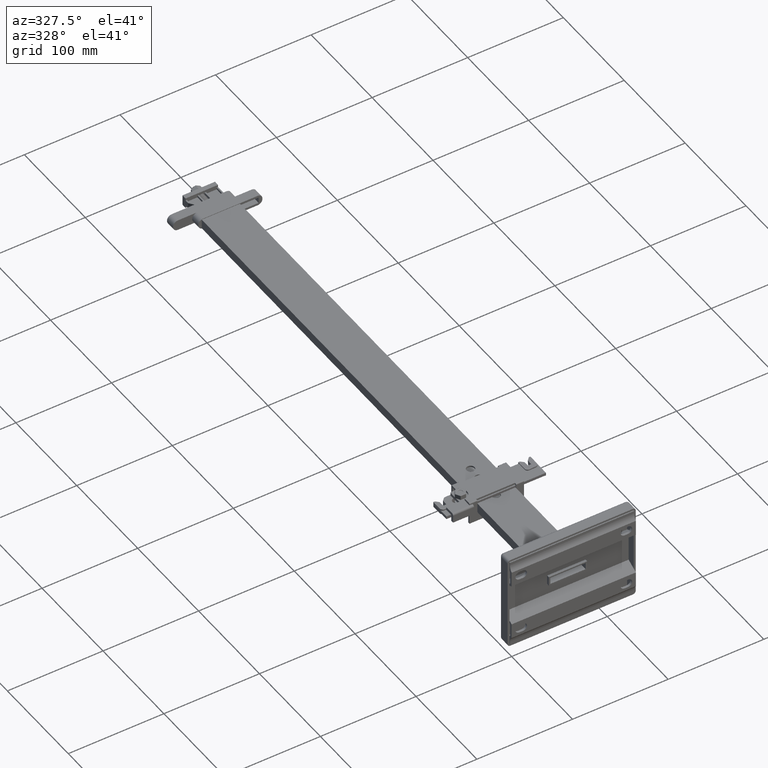
[diagram: clean part render]
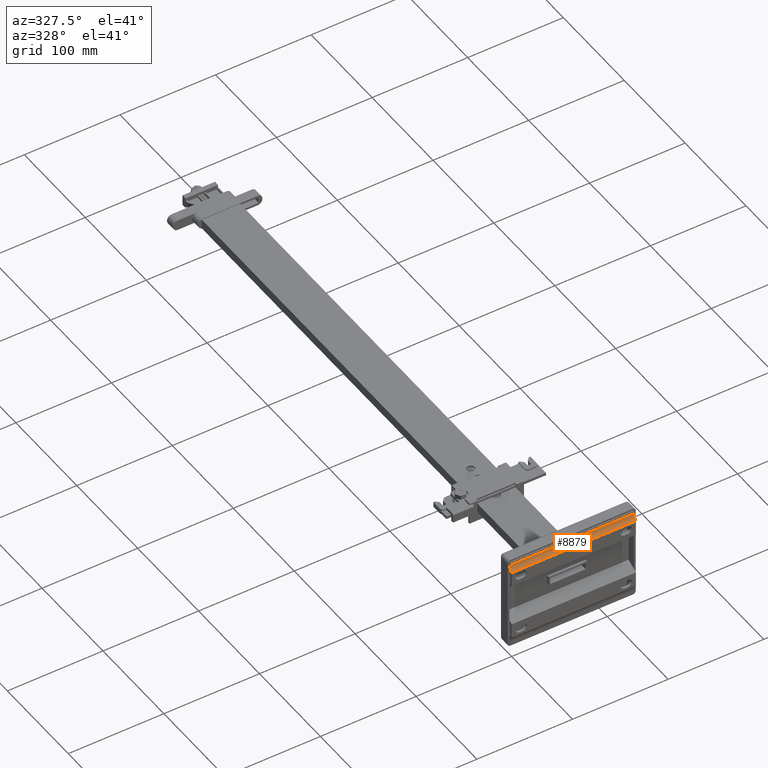
[diagram: same view with one face highlighted and labeled with its STEP entity id]
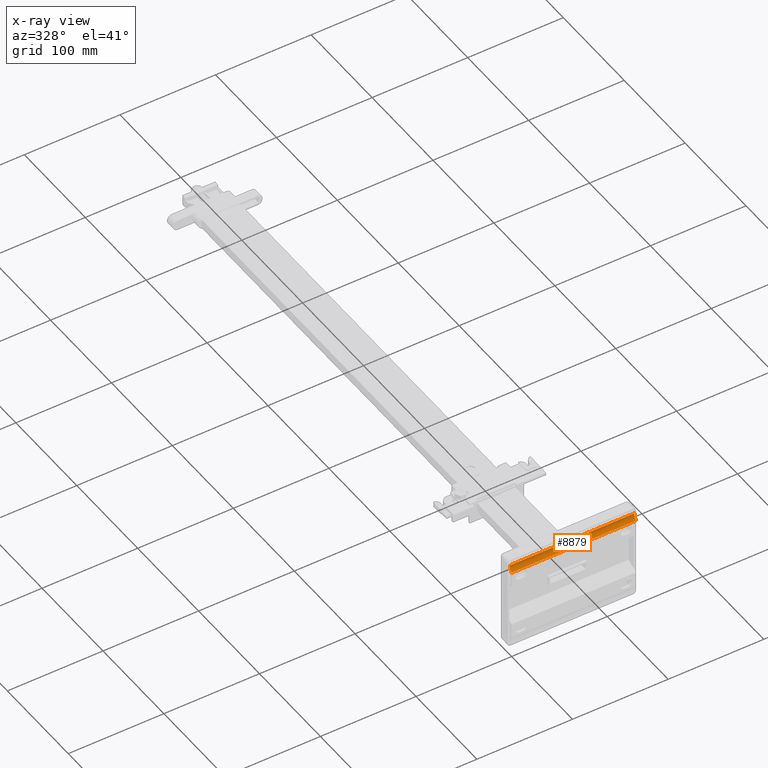
[diagram: x-ray of the same camera — body ghosted, the highlighted face saturated]
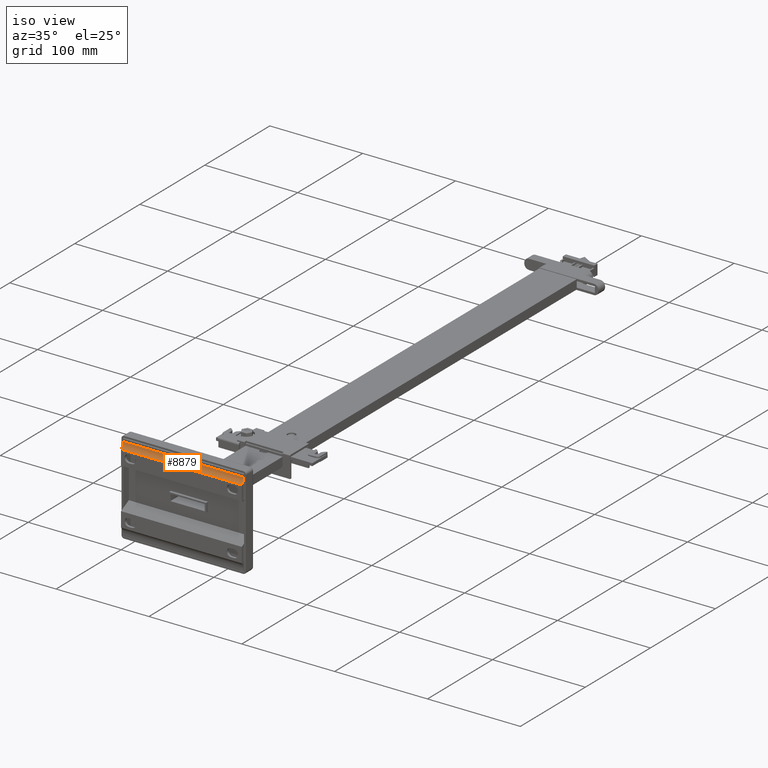
[diagram: same view with one face highlighted and labeled with its STEP entity id]
A machine part, auxiliary view. The second image highlights one B-rep face of the part: STEP entity #8879.
The next image is the same camera in x-ray: the body ghosted, the highlighted face saturated — about 0% of this face is hidden behind the body in this view.
A second angle (iso view) of the same face is appended — the face is thin or edge-on in the first view.
In plain terms, the highlighted cylindrical surface (edge-blend (fillet) strip) has radius 8.6228 mm, axis along (1, 0, 0).
Its self-contained STEP definition (entity closure, byte-faithful):
#611=CIRCLE('',#9539,8.62284482758618);
#612=CIRCLE('',#9540,8.62284482758618);
#745=CYLINDRICAL_SURFACE('',#9538,8.62284482758618);
#1021=FACE_OUTER_BOUND('',#1518,.T.);
#1518=EDGE_LOOP('',(#6010,#6011,#6012,#6013));
#2079=LINE('',#12442,#2892);
#2080=LINE('',#12448,#2893);
#2892=VECTOR('',#10293,10.);
#2893=VECTOR('',#10300,10.);
#3699=VERTEX_POINT('',#12438);
#3700=VERTEX_POINT('',#12440);
#3701=VERTEX_POINT('',#12444);
#3702=VERTEX_POINT('',#12446);
#4615=EDGE_CURVE('',#3699,#3700,#2079,.T.);
#4616=EDGE_CURVE('',#3699,#3701,#611,.T.);
#4617=EDGE_CURVE('',#3702,#3700,#612,.T.);
#4618=EDGE_CURVE('',#3701,#3702,#2080,.T.);
#6010=ORIENTED_EDGE('',*,*,#4616,.F.);
#6011=ORIENTED_EDGE('',*,*,#4615,.T.);
#6012=ORIENTED_EDGE('',*,*,#4617,.F.);
#6013=ORIENTED_EDGE('',*,*,#4618,.F.);
#8879=ADVANCED_FACE('',(#1021),#745,.F.);
#9538=AXIS2_PLACEMENT_3D('',#12443,#10294,#10295);
#9539=AXIS2_PLACEMENT_3D('',#12445,#10296,#10297);
#9540=AXIS2_PLACEMENT_3D('',#12447,#10298,#10299);
#10293=DIRECTION('',(1.,0.,0.));
#10294=DIRECTION('center_axis',(1.,0.,0.));
#10295=DIRECTION('ref_axis',(0.,0.663684078980254,-0.748012996750813));
#10296=DIRECTION('center_axis',(1.,0.,0.));
#10297=DIRECTION('ref_axis',(0.,0.663684078980254,-0.748012996750813));
#10298=DIRECTION('center_axis',(-1.,0.,0.));
#10299=DIRECTION('ref_axis',(0.,0.663684078980254,-0.748012996750813));
#10300=DIRECTION('',(1.,0.,0.));
#12438=CARTESIAN_POINT('',(0.,1.11022302462516E-15,38.15));
#12440=CARTESIAN_POINT('',(130.,0.,38.15));
#12442=CARTESIAN_POINT('',(0.,1.11022302462516E-15,38.15));
#12443=CARTESIAN_POINT('Origin',(0.,-5.72284482758618,44.6));
#12444=CARTESIAN_POINT('',(0.,2.9,44.6));
#12445=CARTESIAN_POINT('Origin',(0.,-5.72284482758618,44.6));
#12446=CARTESIAN_POINT('',(130.,2.9,44.6));
#12447=CARTESIAN_POINT('Origin',(130.,-5.72284482758618,44.6));
#12448=CARTESIAN_POINT('',(0.,2.9,44.6));